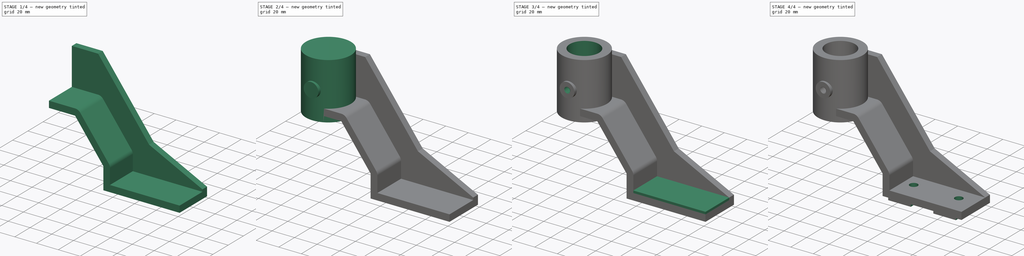
[diagram: build sequence overview — one tinted view per stage of 4, left to right]
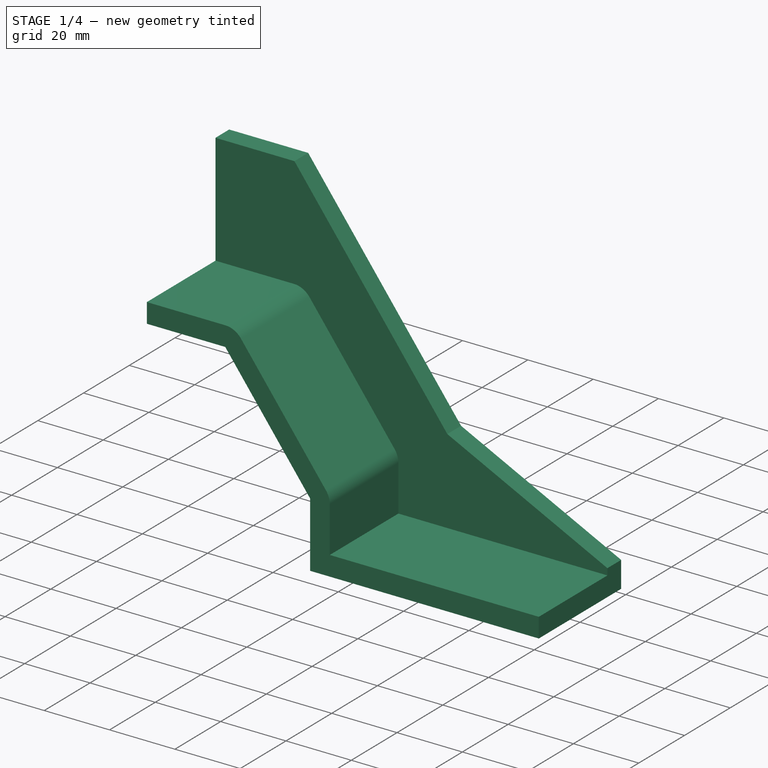
[diagram: stage 1 of 4 — iso view after this stage's code; geometry added in this stage tinted green]
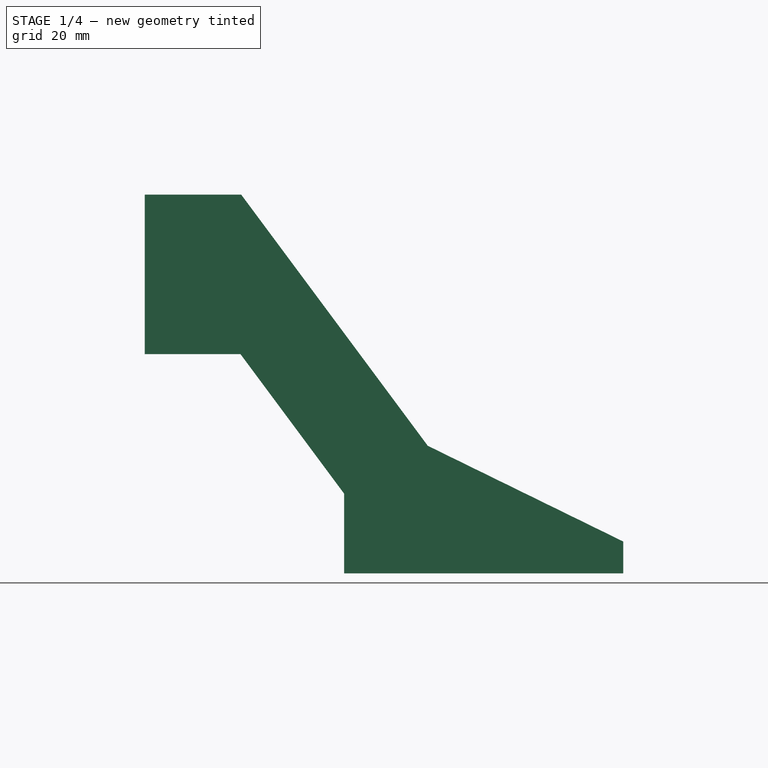
[diagram: stage 1 of 4 — front view after this stage's code; geometry added in this stage tinted green]
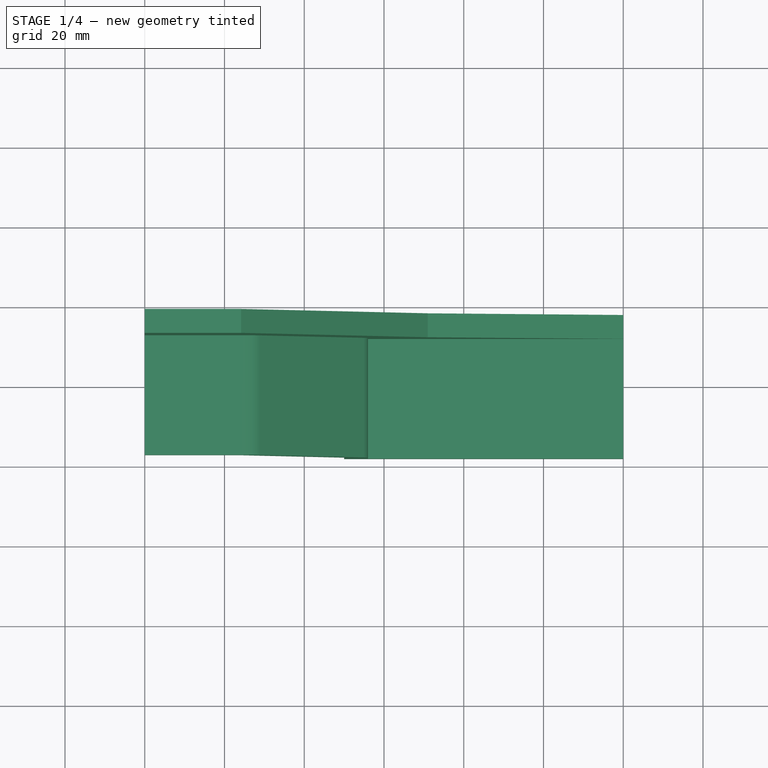
[diagram: stage 1 of 4 — top view after this stage's code; geometry added in this stage tinted green]
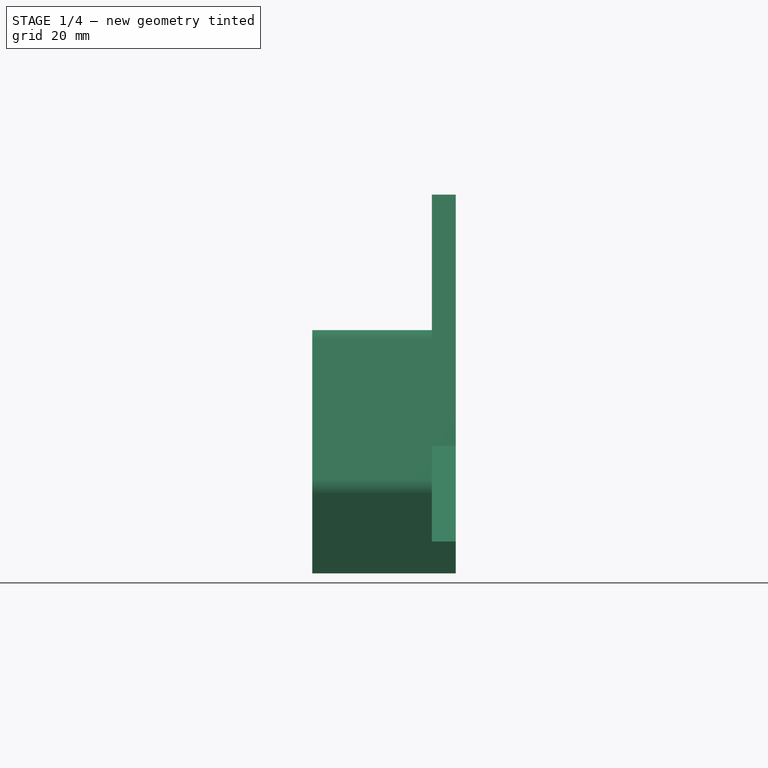
[diagram: stage 1 of 4 — right view after this stage's code; geometry added in this stage tinted green]
FCSTD DOCUMENT  (FreeCAD 0.21R33771 (Git))
Label: ex45
License: All rights reserved
LicenseURL: https://en.wikipedia.org/wiki/All_rights_reserved
objects: Sketcher::SketchObject×7, PartDesign::Pad×4, PartDesign::Pocket×2, PartDesign::Thickness×1, PartDesign::Groove×1, PartDesign::Hole×1, PartDesign::Body×1
note: 26 computed .brp shape members not serialized (recipe doc carries the construction recipe); baked Part::Feature solids carry a one-line shape summary decoded from their .brp

FEATURE [Sketcher::SketchObject] Sketch
  FullyConstrained = true
  MapMode = 5
  Placement = pos=(0,0,0) rot=(1,0,0;1.5708rad)
  Support = -> [XZ_Plane]
  sketch-geometry (9):
    g0: LineSegment StartX=0 StartY=0 StartZ=0 EndX=24 EndY=0 EndZ=0
    g1: LineSegment StartX=24 StartY=0 StartZ=0 EndX=50 EndY=-35 EndZ=0
    g2: LineSegment StartX=50 StartY=-35 StartZ=0 EndX=50 EndY=-55 EndZ=0
    g3: LineSegment StartX=50 StartY=-55 StartZ=0 EndX=120 EndY=-55 EndZ=0
    g4: LineSegment StartX=120 StartY=-55 StartZ=0 EndX=120 EndY=-47 EndZ=0
    g5: LineSegment StartX=120 StartY=-47 StartZ=0 EndX=70.9832 EndY=-23 EndZ=0
    g6: LineSegment StartX=70.9832 StartY=-23 StartZ=0 EndX=24.1832 EndY=40 EndZ=0
    g7: LineSegment StartX=24.1832 StartY=40 StartZ=0 EndX=0 EndY=40 EndZ=0
    g8: LineSegment StartX=0 StartY=40 StartZ=0 EndX=0 EndY=0 EndZ=0
  constraints (26):
    c: Coincident(g-1,g0)
    c: PointOnObject(g0,g-1)
    c: Coincident(g0,g1)
    c: Coincident(g1,g2)
    c: Coincident(g2,g3)
    c: Coincident(g3,g4)
    c: Vertical(g4)
    c: Coincident(g4,g5)
    c: Coincident(g5,g6)
    c: Coincident(g6,g7)
    c: Coincident(g7,g8)
    c: Coincident(g8,g0)
    c: Vertical(g8)
    c: Horizontal(g7)
    c: Vertical(g2)
    c: DistanceX(g0,g3) = 96
    c: Horizontal(g3)
    c: DistanceX(g3,g3) = 70
    c: DistanceY(g4,g4) = 8
    c: DistanceY(g2,g2) = 20
    c: DistanceY(g2,g0) = 55
    c: DistanceY(g8,g8) = 40
    c: DistanceY(g2,g5) = 32
    c: Distance(g1,g6) = 24
    c: Parallel(g6,g1)
    c: DistanceX(g0,g3) = 120
FEATURE [PartDesign::Pad] Pad
  Direction = (0,-1,2e-16)
  Length = 36
  Length2 = 10
  Midplane = true
  Placement = pos=(0,0,0) rot=(1,0,0;1.5708rad)
  Profile = -> Sketch
  ReferenceAxis = -> Sketch [N_Axis]
  Type = 0
FEATURE [PartDesign::Thickness] Thickness
  Base = -> Pad [Face8,Face7,Face6,Face11,Face5,Face9]
  BaseFeature = -> Pad
  Intersection = false
  Join = 0
  Mode = 0
  Reversed = true
  SupportTransform = false
  Value = 6
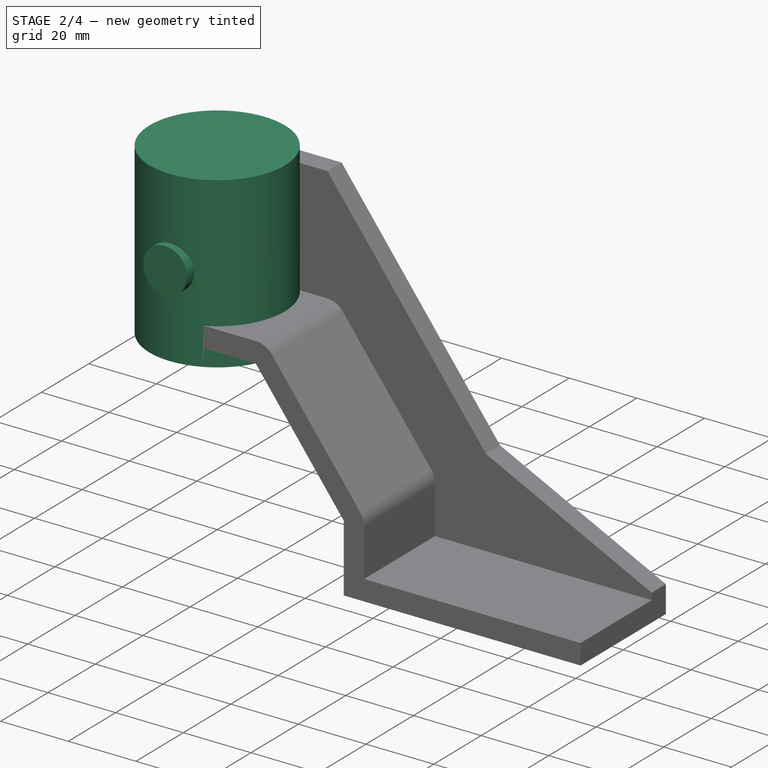
[diagram: stage 2 of 4 — iso view after this stage's code; geometry added in this stage tinted green]
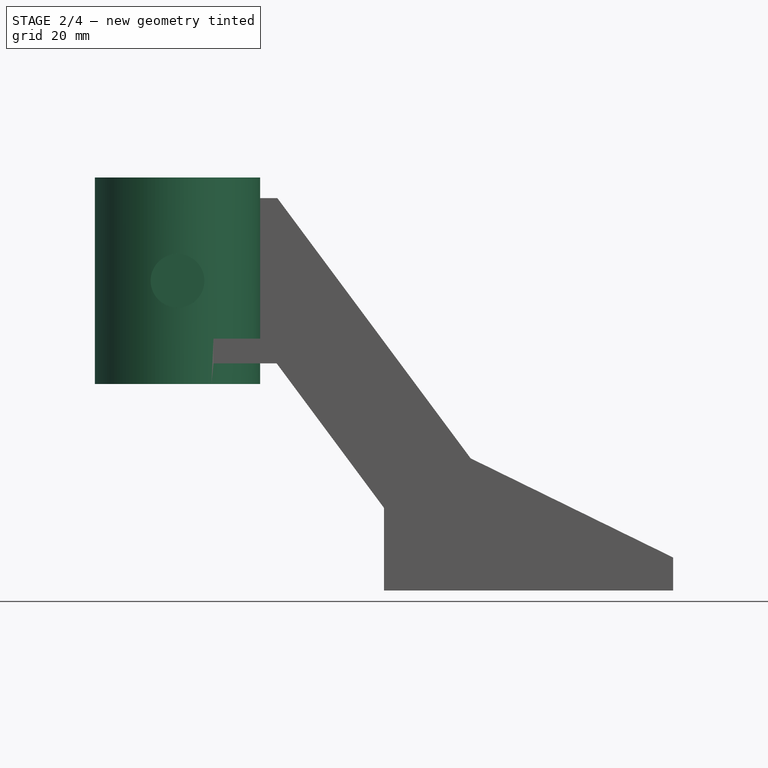
[diagram: stage 2 of 4 — front view after this stage's code; geometry added in this stage tinted green]
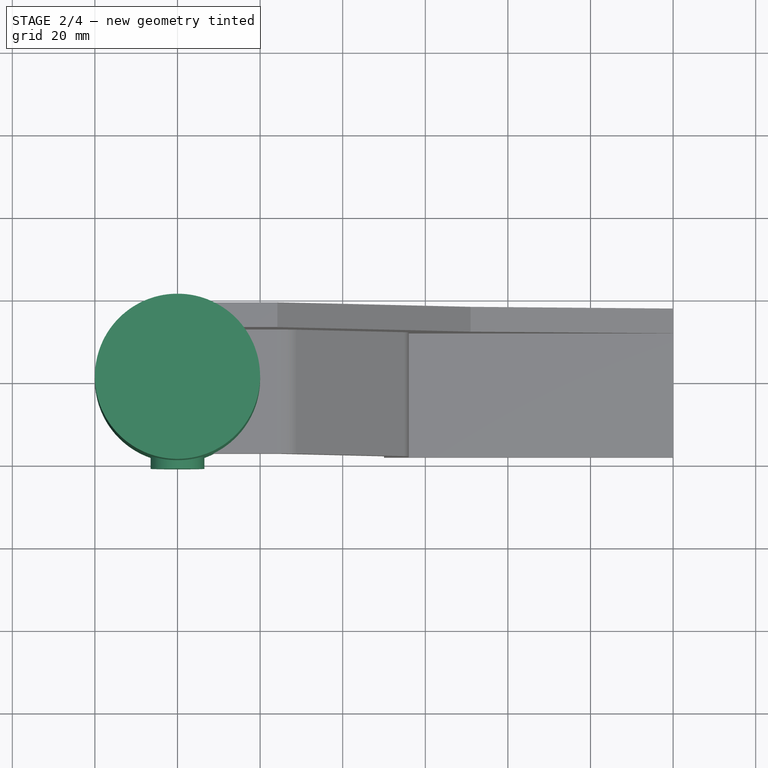
[diagram: stage 2 of 4 — top view after this stage's code; geometry added in this stage tinted green]
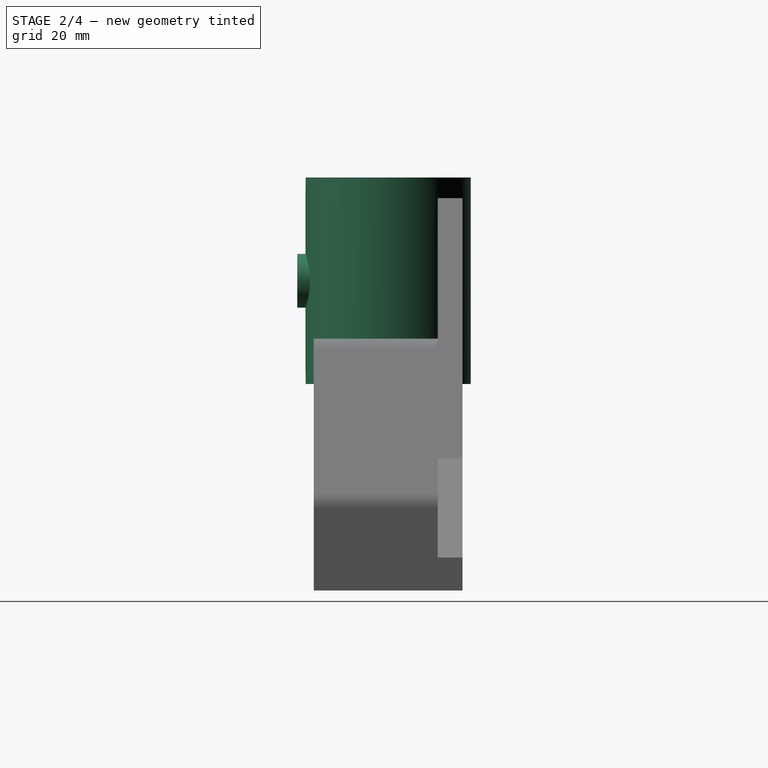
[diagram: stage 2 of 4 — right view after this stage's code; geometry added in this stage tinted green]
FEATURE [Sketcher::SketchObject] Sketch001
  FullyConstrained = true
  MapMode = 5
  Support = -> [XY_Plane]
  sketch-geometry (1):
    g0: Circle CenterX=0 CenterY=0 CenterZ=0 NormalX=0 NormalY=0 NormalZ=1 AngleXU=0 Radius=20
  constraints (2):
    c: Coincident(g0,g-1)
    c: Radius(g0) = 20
FEATURE [PartDesign::Pad] Pad001
  BaseFeature = -> Thickness
  Direction = (0,0,1)
  Length = 45
  Length2 = 5
  Profile = -> Sketch001
  ReferenceAxis = -> Sketch001 [N_Axis]
  Type = 4
FEATURE [Sketcher::SketchObject] Sketch002
  ExternalGeometry = -> [Pad001]
  FullyConstrained = true
  MapMode = 5
  Placement = pos=(0,0,0) rot=(1,0,0;1.5708rad)
  Support = -> [XZ_Plane]
  sketch-geometry (8):
    g0: LineSegment StartX=-13 StartY=45 StartZ=0 EndX=-13 EndY=30 EndZ=0
    g1: LineSegment StartX=-13 StartY=30 StartZ=0 EndX=-15 EndY=30 EndZ=0
    g2: LineSegment StartX=-15 StartY=30 StartZ=0 EndX=-15 EndY=10 EndZ=0
    g3: LineSegment StartX=-15 StartY=10 StartZ=0 EndX=-13 EndY=10 EndZ=0
    g4: LineSegment StartX=-13 StartY=10 StartZ=0 EndX=-13 EndY=-5 EndZ=0
    g5: LineSegment StartX=-13 StartY=45 StartZ=0 EndX=0 EndY=45 EndZ=0
    g6: LineSegment StartX=0 StartY=45 StartZ=0 EndX=0 EndY=-5 EndZ=0
    g7: LineSegment StartX=0 StartY=-5 StartZ=0 EndX=-13 EndY=-5 EndZ=0
  constraints (23):
    c: PointOnObject(g0,g-3)
    c: Vertical(g0)
    c: Coincident(g0,g1)
    c: Coincident(g1,g2)
    c: Vertical(g2)
    c: Coincident(g2,g3)
    c: Horizontal(g3)
    c: Coincident(g3,g4)
    c: PointOnObject(g4,g-4)
    c: Vertical(g4)
    c: Horizontal(g1)
    c: DistanceY(g0,g0) = 15
    c: DistanceY(g2,g2) = 20
    c: Vertical(g0,g3)
    c: DistanceX(g3,g3) = 2
    c: Coincident(g0,g5)
    c: PointOnObject(g5,g-3)
    c: Coincident(g5,g6)
    c: PointOnObject(g6,g-4)
    c: Coincident(g6,g7)
    c: Coincident(g7,g4)
    c: DistanceX(g5,g5) = 13
    c: Tangent(g6,g-2)
FEATURE [Sketcher::SketchObject] Sketch003
  ExternalGeometry = -> [Pad001]
  FullyConstrained = true
  MapMode = 5
  Placement = pos=(0,0,0) rot=(1,0,0;1.5708rad)
  Support = -> [XZ_Plane]
  sketch-geometry (1):
    g0: Circle CenterX=0 CenterY=20 CenterZ=0 NormalX=0 NormalY=0 NormalZ=1 AngleXU=0 Radius=6.5
  constraints (3):
    c: PointOnObject(g0,g-2)
    c: Radius(g0) = 6.5
    c: DistanceY(g-3,g0) = 25
FEATURE [PartDesign::Pad] Pad002
  BaseFeature = -> Pad001
  Direction = (0,-1,2e-16)
  Length = 22
  Length2 = 10
  Profile = -> Sketch003
  ReferenceAxis = -> Sketch003 [N_Axis]
  Type = 0
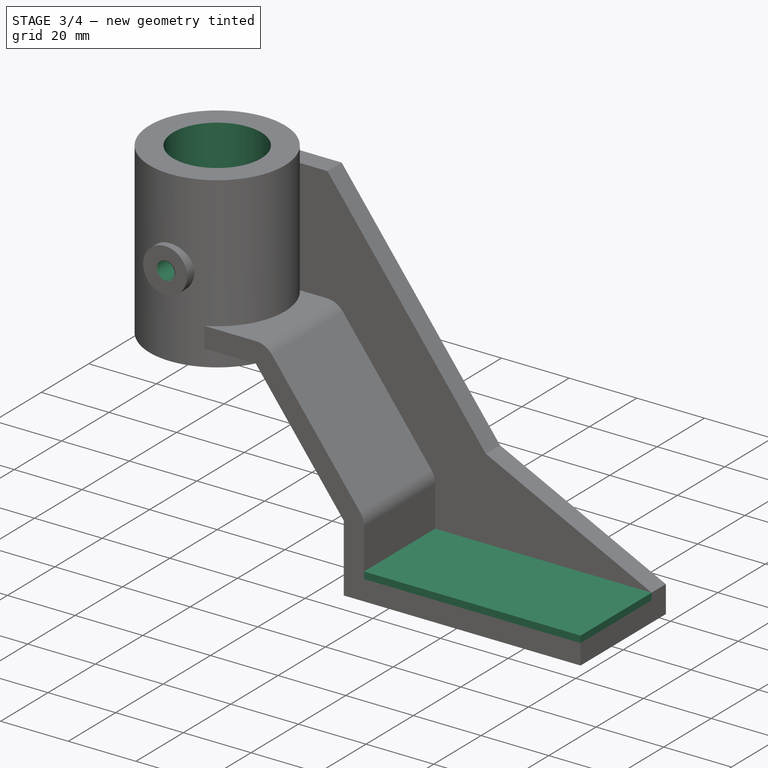
[diagram: stage 3 of 4 — iso view after this stage's code; geometry added in this stage tinted green]
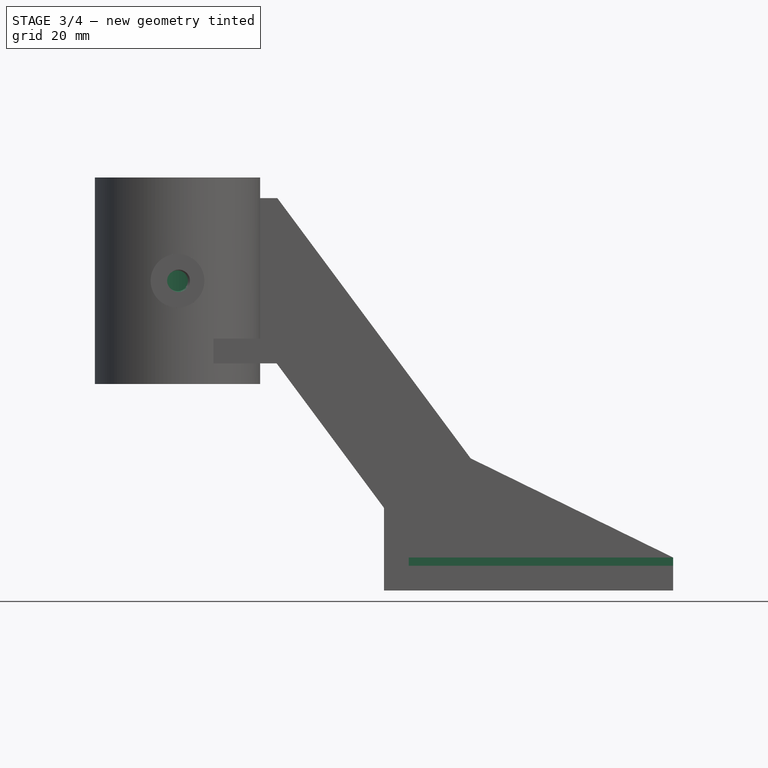
[diagram: stage 3 of 4 — front view after this stage's code; geometry added in this stage tinted green]
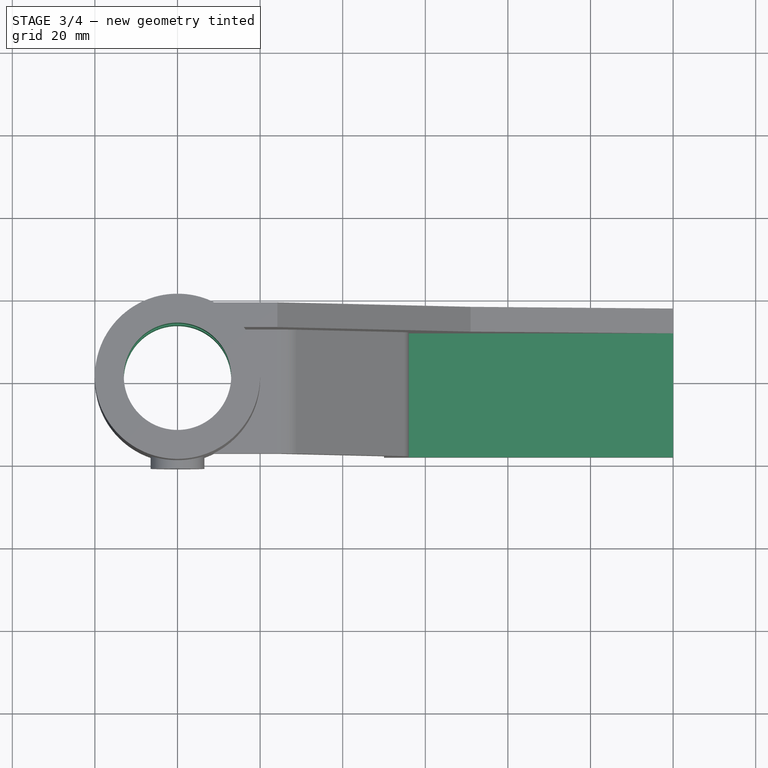
[diagram: stage 3 of 4 — top view after this stage's code; geometry added in this stage tinted green]
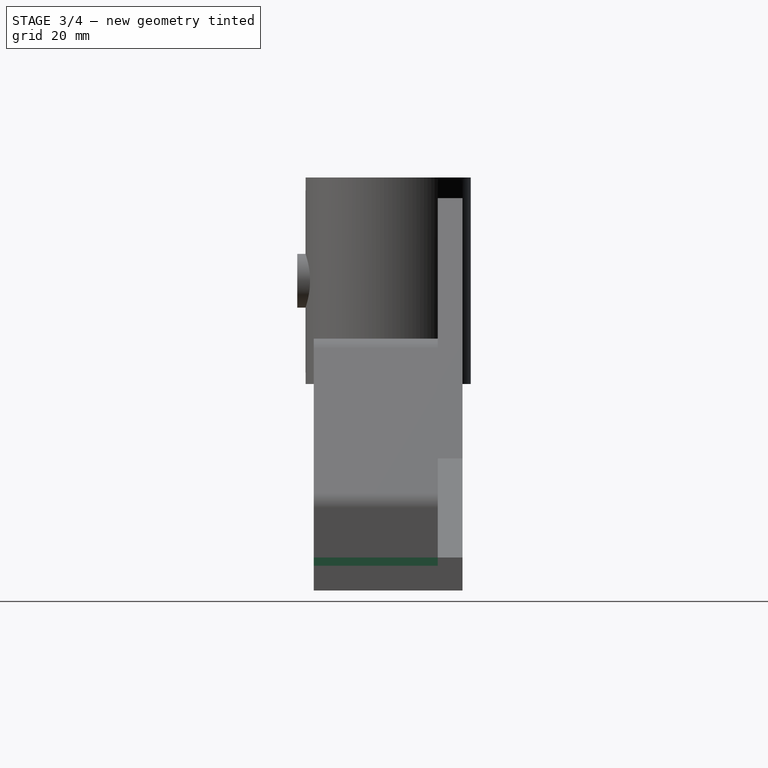
[diagram: stage 3 of 4 — right view after this stage's code; geometry added in this stage tinted green]
FEATURE [PartDesign::Groove] Groove
  Angle = 360
  Axis = (0,2e-16,1)
  Base = (0,0,0)
  BaseFeature = -> Pad002
  Profile = -> Sketch002
  ReferenceAxis = -> Sketch002 [V_Axis]
  Reversed = true
FEATURE [Sketcher::SketchObject] Sketch004
  ExternalGeometry = -> [Groove]
  FullyConstrained = false
  MapMode = 5
  Placement = pos=(0,-22,4.9e-15) rot=(1,0,0;1.5708rad)
  Support = -> [Groove]
  sketch-geometry (1):
    g0: Circle CenterX=0 CenterY=20 CenterZ=0 NormalX=0 NormalY=0 NormalZ=1 AngleXU=0 Radius=2.23622
  constraints (1):
    c: Coincident(g0,g-3)
FEATURE [PartDesign::Hole] Hole
  BaseFeature = -> Groove
  CustomThreadClearance = 0
  Depth = 25
  DepthType = 0
  Diameter = 5.026
  DrillForDepth = false
  DrillPoint = 1
  DrillPointAngle = 118
  HoleCutCountersinkAngle = 90
  HoleCutCustomValues = false
  HoleCutDepth = 0
  HoleCutDiameter = 6.1
  HoleCutType = 0
  ModelThread = true
  Profile = -> Sketch004
  Tapered = false
  TaperedAngle = 90
  ThreadClass = 0
  ThreadDepth = 25
  ThreadDepthType = 0
  ThreadDirection = 0
  ThreadFit = 0
  ThreadSize = 14
  ThreadType = 1
  Threaded = true
  UseCustomThreadClearance = false
FEATURE [PartDesign::Pad] Pad003
  BaseFeature = -> Hole
  Direction = (0,2e-16,1)
  Length = 2
  Length2 = 10
  Profile = -> Hole [Face12]
  Type = 0
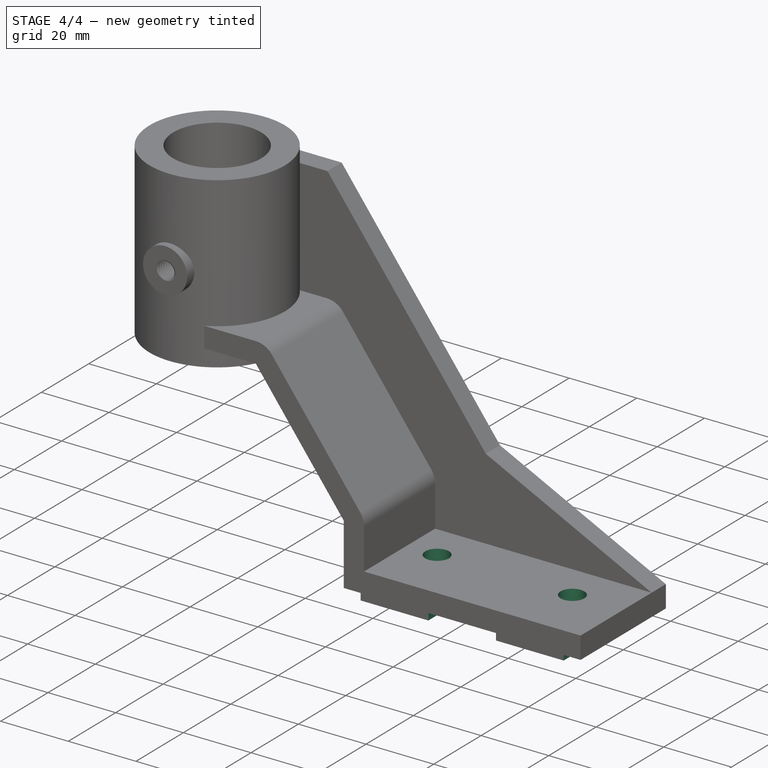
[diagram: stage 4 of 4 — iso view after this stage's code; geometry added in this stage tinted green]
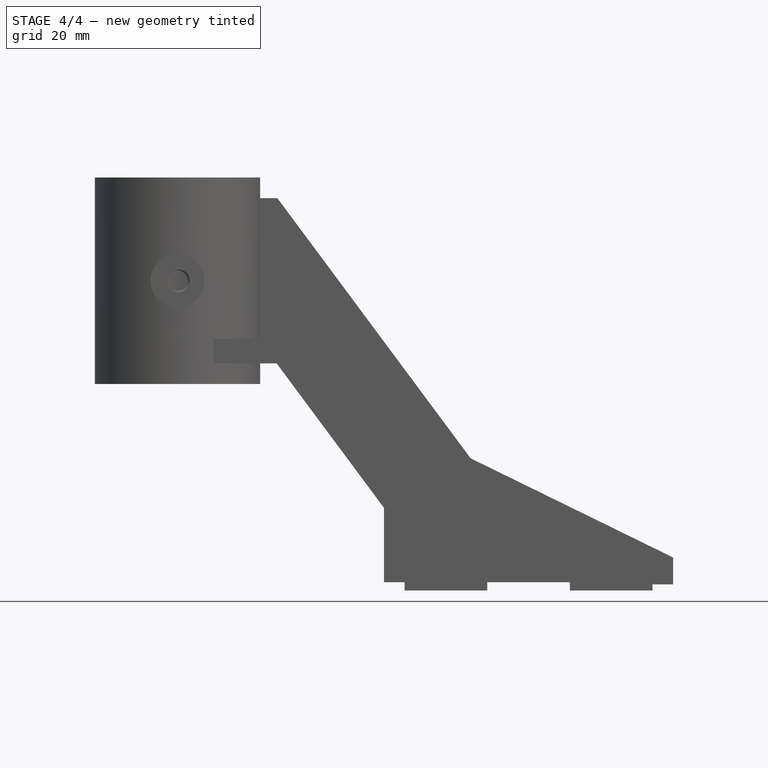
[diagram: stage 4 of 4 — front view after this stage's code; geometry added in this stage tinted green]
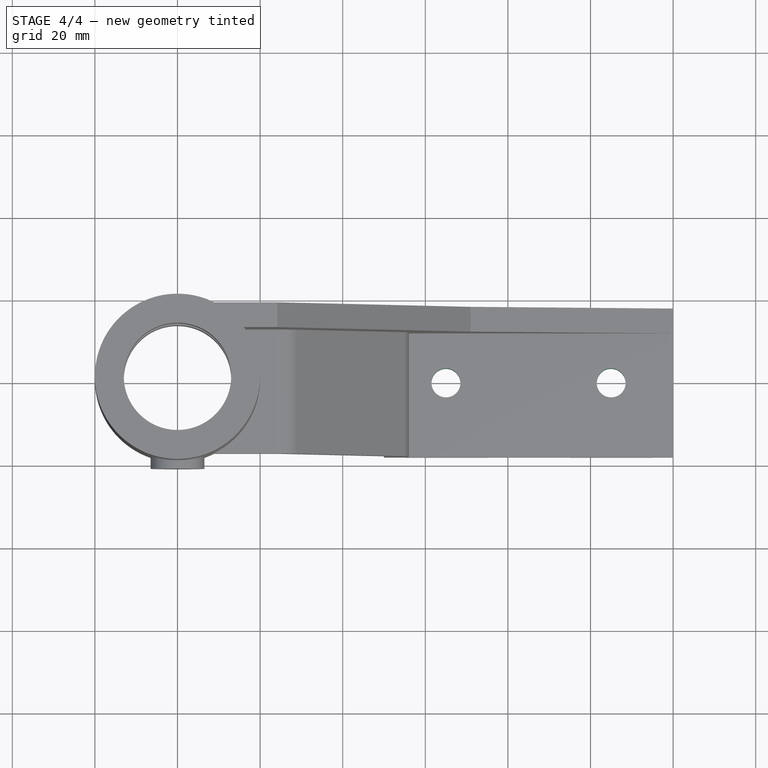
[diagram: stage 4 of 4 — top view after this stage's code; geometry added in this stage tinted green]
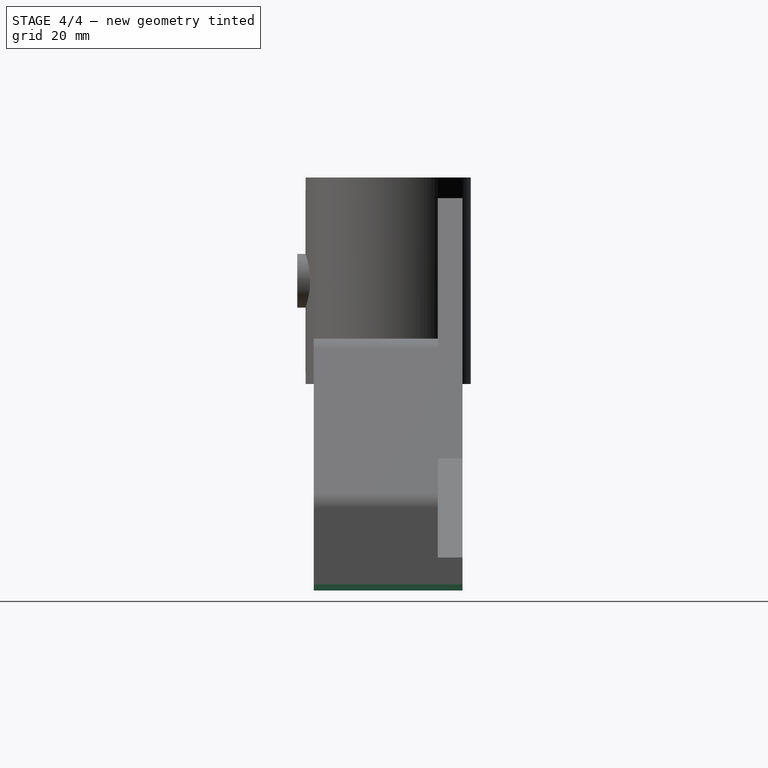
[diagram: stage 4 of 4 — right view after this stage's code; geometry added in this stage tinted green]
FEATURE [Sketcher::SketchObject] Sketch005
  ExternalGeometry = -> [Pad003]
  FullyConstrained = false
  MapMode = 5
  Placement = pos=(0,0,0) rot=(1,0,0;1.5708rad)
  Support = -> [XZ_Plane]
  sketch-geometry (12):
    g0: LineSegment StartX=47.0677 StartY=-53 StartZ=0 EndX=55 EndY=-53 EndZ=0
    g1: LineSegment StartX=55 StartY=-53 StartZ=0 EndX=55 EndY=-56.2737 EndZ=0
    g2: LineSegment StartX=55 StartY=-56.2737 StartZ=0 EndX=75 EndY=-56.2737 EndZ=0
    g3: LineSegment StartX=75 StartY=-56.2737 StartZ=0 EndX=75 EndY=-53 EndZ=0
    g4: LineSegment StartX=75 StartY=-53 StartZ=0 EndX=95 EndY=-53 EndZ=0
    g5: LineSegment StartX=95 StartY=-53 StartZ=0 EndX=95 EndY=-57.2281 EndZ=0
    g6: LineSegment StartX=95 StartY=-57.2281 StartZ=0 EndX=115 EndY=-57.2281 EndZ=0
    g7: LineSegment StartX=115 StartY=-57.2281 StartZ=0 EndX=115 EndY=-53.5011 EndZ=0
    g8: LineSegment StartX=115 StartY=-53.5011 StartZ=0 EndX=122.916 EndY=-53.5011 EndZ=0
    g9: LineSegment StartX=47.0677 StartY=-53 StartZ=0 EndX=47.0677 EndY=-64.7358 EndZ=0
    g10: LineSegment StartX=47.0677 StartY=-64.7358 StartZ=0 EndX=124.376 EndY=-64.7358 EndZ=0
    g11: LineSegment StartX=124.376 StartY=-64.7358 StartZ=0 EndX=122.916 EndY=-53.5011 EndZ=0
  constraints (29):
    c: Horizontal(g0)
    c: Coincident(g0,g1)
    c: Vertical(g1)
    c: DistanceY(g-3,g0) = 2
    c: DistanceX(g-3,g1) = 5
    c: Coincident(g2,g1)
    c: Horizontal(g2)
    c: DistanceX(g2,g2) = 20
    c: Coincident(g3,g2)
    c: Vertical(g3)
    c: Distance(g3,g-3) = 2
    c: Coincident(g4,g3)
    c: Horizontal(g4)
    c: Coincident(g5,g4)
    c: Vertical(g5)
    c: Coincident(g6,g5)
    c: Horizontal(g6)
    c: Coincident(g7,g6)
    c: Vertical(g7)
    c: Horizontal(g8)
    c: DistanceX(g6,g6) = 20
    c: Coincident(g8,g7)
    c: DistanceX(g7,g-3) = 5
    c: Coincident(g0,g9)
    c: Vertical(g9)
    c: Coincident(g9,g10)
    c: Horizontal(g10)
    c: Coincident(g10,g11)
    c: Coincident(g11,g8)
FEATURE [PartDesign::Pocket] Pocket
  BaseFeature = -> Pad003
  Direction = (0,1,-2e-16)
  Length = 5
  Length2 = 5
  Midplane = true
  Profile = -> Sketch005
  ReferenceAxis = -> Sketch005 [N_Axis]
  Refine = true
  Type = 1
FEATURE [Sketcher::SketchObject] Sketch006
  ExternalGeometry = -> [Pocket]
  FullyConstrained = true
  MapMode = 5
  Placement = pos=(0,-1.04e-14,-47) rot=(0,0,1;0rad)
  Support = -> [Pocket]
  sketch-geometry (2):
    g0: Circle CenterX=65 CenterY=-3.3e-15 CenterZ=0 NormalX=0 NormalY=0 NormalZ=1 AngleXU=0 Radius=3.5
    g1: Circle CenterX=105 CenterY=-3.3e-15 CenterZ=0 NormalX=0 NormalY=0 NormalZ=1 AngleXU=0 Radius=3.5
  constraints (6):
    c: Equal(g1,g0)
    c: Radius(g1) = 3.5
    c: Distance(g1,g-3) = 15
    c: Horizontal(g0,g1)
    c: DistanceX(g0,g1) = 40
    c: DistanceY(g-3,g0) = 18
FEATURE [PartDesign::Pocket] Pocket001
  BaseFeature = -> Pocket
  Direction = (0,-2e-16,-1)
  Length = 13
  Length2 = 5
  Profile = -> Sketch006
  ReferenceAxis = -> Sketch006 [N_Axis]
  Type = 0
FEATURE [PartDesign::Body] Body
  Group = -> [Sketch,Pad,Thickness,Sketch001,Pad001,Sketch002,Sketch003,Pad002,Groove,Sketch004,Hole,Pad003,Sketch005,Pocket,Sketch006,Pocket001]
  Origin = -> Origin
  Tip = -> Pocket001
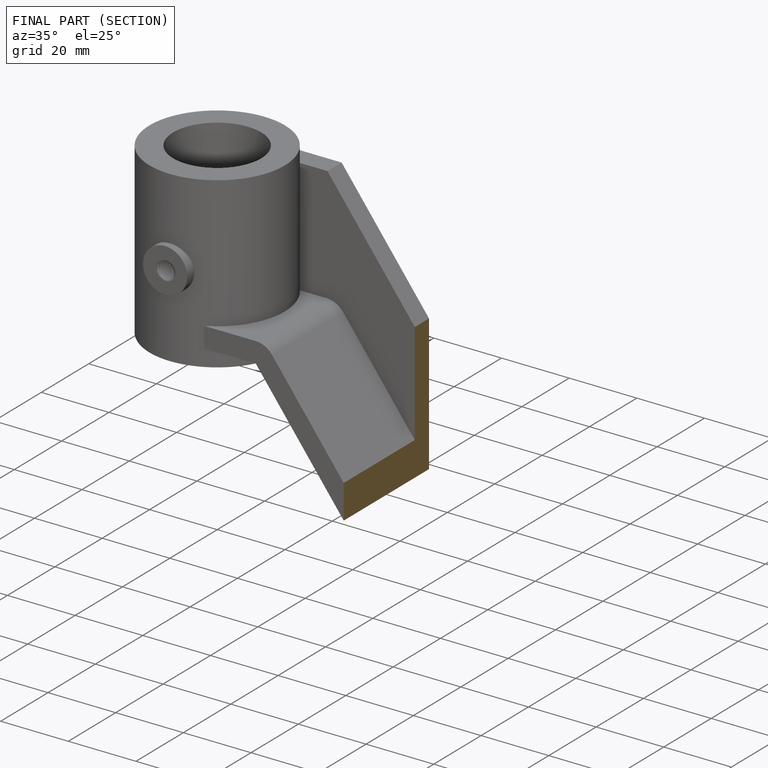
[diagram: finished part — half-section view (interior)]
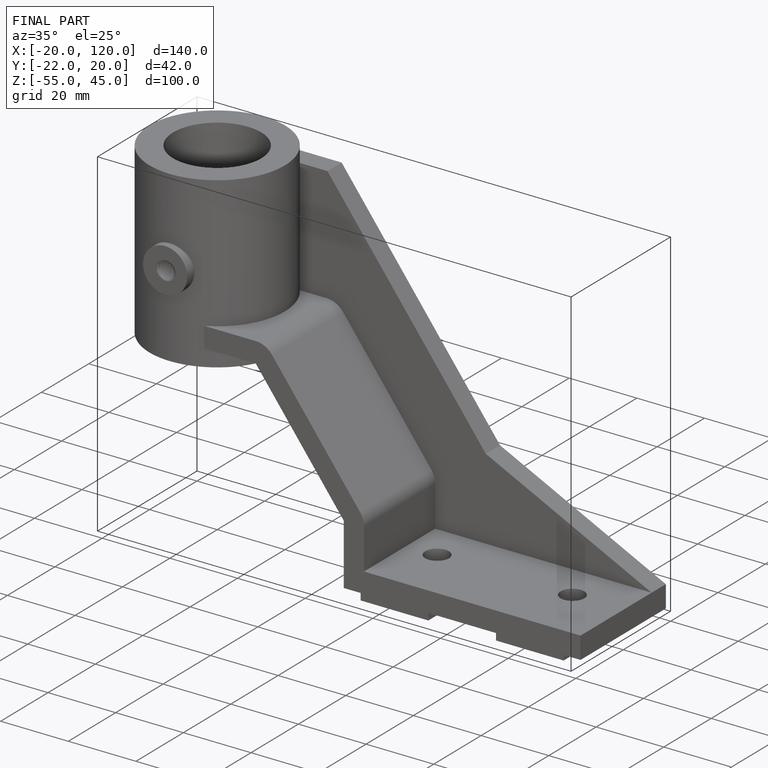
[diagram: finished part — iso view with bounding-box wireframe]
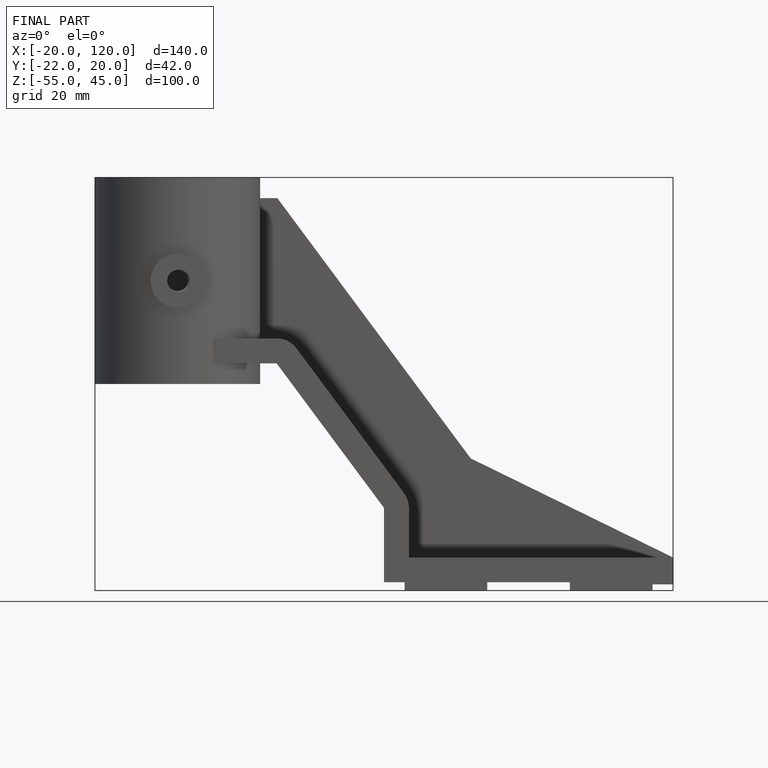
[diagram: finished part — front view with bounding-box wireframe]
